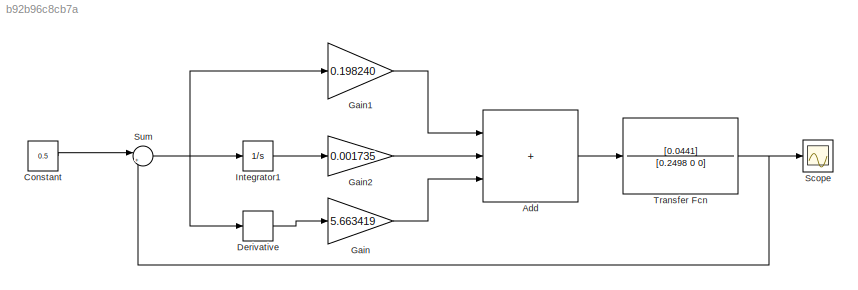
MODEL slx_b92b96c8cb7a
KIND model
CONFIG AbsTol = auto
CONFIG EnableMultiTasking = off
CONFIG FixedStep = auto
CONFIG MaxStep = auto
CONFIG MinStep = auto
CONFIG RelTol = 1e-3
CONFIG SampleTimeConstraint = Unconstrained
CONFIG SolverName = VariableStepAuto
CONFIG StartTime = 0.0
CONFIG StopTime = 10.0
BLOCK [Sum] Add
  IconShape = rectangular
  Inputs = +++
  Ports = [3, 1]
BLOCK [Constant] Constant
  Value = 0.5
BLOCK [Derivative] Derivative
BLOCK [Gain] Gain
  Gain = 5.663419
BLOCK [Gain] Gain1
  Gain = 0.198240
BLOCK [Gain] Gain2
  Gain = 0.001735
BLOCK [Integrator] Integrator1
  Ports = [1, 1]
BLOCK [Scope] Scope
  Floating = off
  NumInputPorts = 1
  Ports = [1]
  ScopeSpecificationString = Simulink.scopes.TimeScopeBlockCfg('CurrentConfiguration', extmgr.ConfigurationSet(extmgr.Configuration('Core','General UI',true),extmgr.Configuration('Core','Source UI',true),extmgr.Configuration('Sources','WiredSimulink',true),extmgr.Configuration('Visuals','Time Domain',true,'SerializedDisplays',{struct('MinYLimReal','-0.01807','MaxYLimReal','0.16264','YLabelReal','','MinYLimMag','0.00000','MaxY...<+1385ch>
BLOCK [Sum] Sum
  Inputs = |+-
  Ports = [2, 1]
BLOCK [TransferFcn] Transfer Fcn
  Denominator = [0.2498 0 0]
  Numerator = [0.0441]
LINE Add:1 -> Transfer Fcn:1
LINE Constant:1 -> Sum:1
LINE Derivative:1 -> Gain:1
LINE Gain1:1 -> Add:1
LINE Gain2:1 -> Add:2
LINE Gain:1 -> Add:3
LINE Integrator1:1 -> Gain2:1
NET Sum:1 -> Derivative:1, Gain1:1, Integrator1:1
NET Transfer Fcn:1 -> Scope:1, Sum:2
note: NET lines group one-source signal fan-out (src -> all destinations, sorted); 1:1 wires keep LINE
